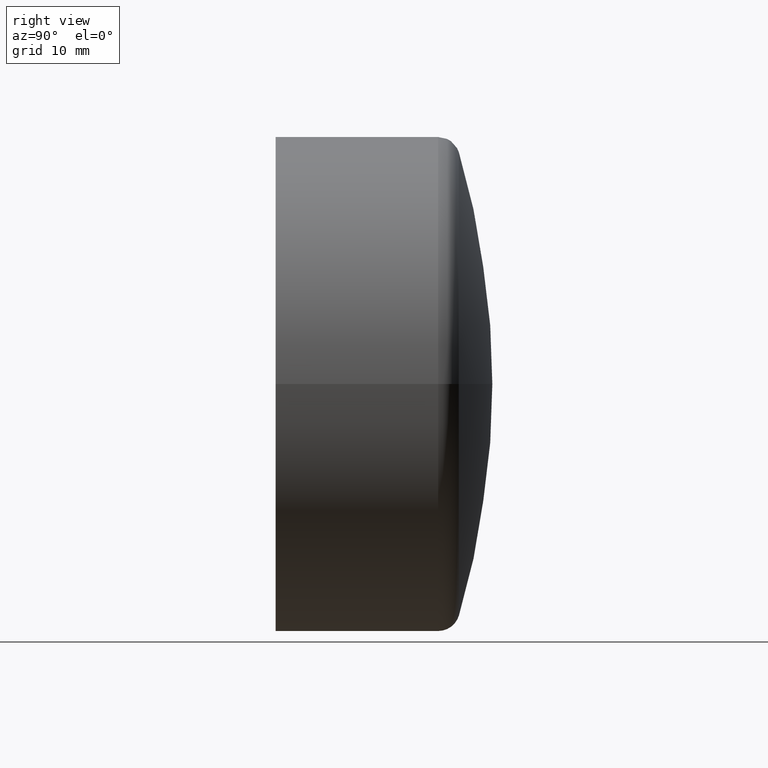
[diagram: clean part render]
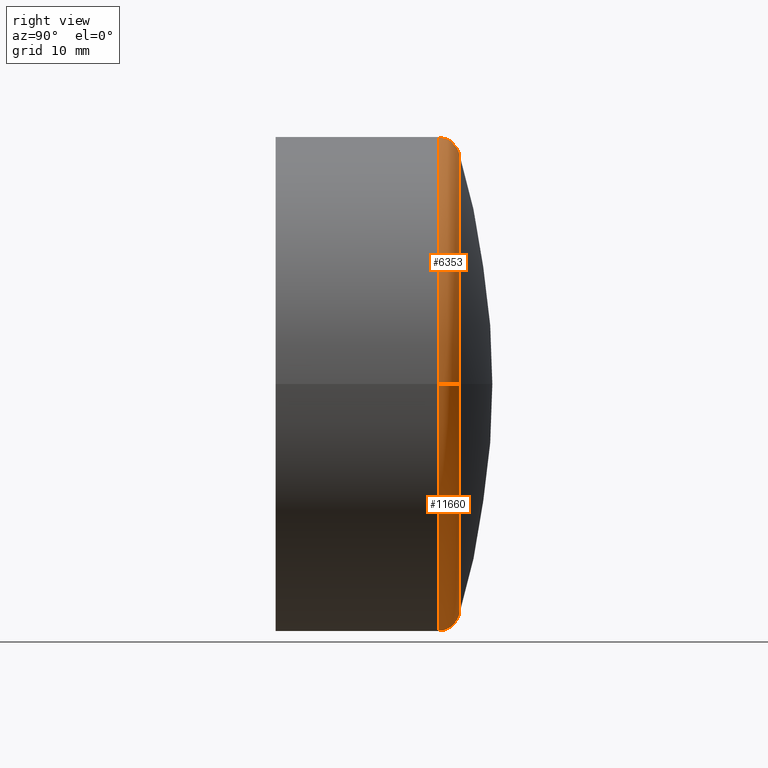
[diagram: same view with one multi-face feature highlighted, each face labeled with its STEP entity id]
A machine part, right view. The highlighted faces form ONE feature: a constant-radius fillet chain: 2 tangent blend faces with common blend radius 2 mm. The faces share edges in the B-rep.
Their STEP definitions:
[1] entity #11660 (Torus):
#77 = CARTESIAN_POINT ( 'NONE',  ( -20.79999999999999400, 15.00000000000000700, 0.0000000000000000000 ) ) ;
#130 = DIRECTION ( 'NONE',  ( -0.0000000000000000000, 0.0000000000000000000, -1.000000000000000000 ) ) ;
#943 = CIRCLE ( 'NONE', #6519, 2.000000000000001800 ) ;
#1603 = DIRECTION ( 'NONE',  ( -1.000000000000000000, 1.540862187183947000E-016, 0.0000000000000000000 ) ) ;
#1705 = CARTESIAN_POINT ( 'NONE',  ( 2.606905479389546700E-015, 16.91848564441627500, 0.0000000000000000000 ) ) ;
#1998 = ORIENTED_EDGE ( 'NONE', *, *, #10678, .F. ) ;
#2249 = ORIENTED_EDGE ( 'NONE', *, *, #7795, .T. ) ;
#2760 = VERTEX_POINT ( 'NONE', #3010 ) ;
#2957 = AXIS2_PLACEMENT_3D ( 'NONE', #10795, #11775, #9833 ) ;
#3001 = DIRECTION ( 'NONE',  ( -1.000000000000000000, 0.0000000000000000000, 0.0000000000000000000 ) ) ;
#3010 = CARTESIAN_POINT ( 'NONE',  ( -21.36516619871386900, 16.91848564441628300, -2.616478239850618300E-015 ) ) ;
#3334 = CARTESIAN_POINT ( 'NONE',  ( 21.36516619871388700, 16.91848564441627500, 0.0000000000000000000 ) ) ;
#3577 = CARTESIAN_POINT ( 'NONE',  ( 2.311293280775920800E-015, 15.00000000000000400, 0.0000000000000000000 ) ) ;
#4475 = AXIS2_PLACEMENT_3D ( 'NONE', #10097, #6377, #1603 ) ;
#4574 = DIRECTION ( 'NONE',  ( -1.000000000000000000, 1.521687259628778000E-016, 0.0000000000000000000 ) ) ;
#5229 = FACE_OUTER_BOUND ( 'NONE', #12027, .T. ) ;
#5325 = VERTEX_POINT ( 'NONE', #10196 ) ;
#6294 = TOROIDAL_SURFACE ( 'NONE', #4475, 20.79999999999999700, 2.000000000000003600 ) ;
#6377 = DIRECTION ( 'NONE',  ( 1.540862187183947000E-016, 1.000000000000000000, -0.0000000000000000000 ) ) ;
#6519 = AXIS2_PLACEMENT_3D ( 'NONE', #77, #130, #3001 ) ;
#7108 = CIRCLE ( 'NONE', #7680, 21.36516619871387900 ) ;
#7653 = DIRECTION ( 'NONE',  ( -1.000000000000000000, 1.623880160671282100E-016, 0.0000000000000000000 ) ) ;
#7680 = AXIS2_PLACEMENT_3D ( 'NONE', #1705, #8527, #7653 ) ;
#7686 = EDGE_CURVE ( 'NONE', #7868, #9748, #11317, .T. ) ;
#7795 = EDGE_CURVE ( 'NONE', #5325, #2760, #943, .T. ) ;
#7868 = VERTEX_POINT ( 'NONE', #11264 ) ;
#8510 = EDGE_CURVE ( 'NONE', #7868, #5325, #11465, .T. ) ;
#8527 = DIRECTION ( 'NONE',  ( 1.540862187183947000E-016, 1.000000000000000000, -0.0000000000000000000 ) ) ;
#8779 = ORIENTED_EDGE ( 'NONE', *, *, #8510, .T. ) ;
#9301 = ORIENTED_EDGE ( 'NONE', *, *, #7686, .F. ) ;
#9748 = VERTEX_POINT ( 'NONE', #3334 ) ;
#9833 = DIRECTION ( 'NONE',  ( 1.000000000000000000, 0.0000000000000000000, 1.224646799147353500E-016 ) ) ;
#10097 = CARTESIAN_POINT ( 'NONE',  ( 3.469446951953614200E-015, 15.00000000000000400, 0.0000000000000000000 ) ) ;
#10196 = CARTESIAN_POINT ( 'NONE',  ( -22.79999999999999400, 15.00000000000000700, 0.0000000000000000000 ) ) ;
#10678 = EDGE_CURVE ( 'NONE', #9748, #2760, #7108, .T. ) ;
#10795 = CARTESIAN_POINT ( 'NONE',  ( 20.80000000000000100, 15.00000000000000000, 2.547265342226494200E-015 ) ) ;
#11264 = CARTESIAN_POINT ( 'NONE',  ( 22.80000000000000100, 15.00000000000000000, 2.792194702055964800E-015 ) ) ;
#11317 = CIRCLE ( 'NONE', #2957, 2.000000000000001800 ) ;
#11413 = AXIS2_PLACEMENT_3D ( 'NONE', #3577, #12291, #4574 ) ;
#11465 = CIRCLE ( 'NONE', #11413, 22.80000000000000100 ) ;
#11660 = ADVANCED_FACE ( 'NONE', ( #5229 ), #6294, .T. ) ;
#11775 = DIRECTION ( 'NONE',  ( -1.224646799147353200E-016, 1.887011945462010500E-032, 1.000000000000000000 ) ) ;
#12027 = EDGE_LOOP ( 'NONE', ( #9301, #8779, #2249, #1998 ) ) ;
#12291 = DIRECTION ( 'NONE',  ( 1.540862187183947000E-016, 1.000000000000000000, -0.0000000000000000000 ) ) ;
[2] entity #6353 (Torus):
#43 = ORIENTED_EDGE ( 'NONE', *, *, #7795, .F. ) ;
#77 = CARTESIAN_POINT ( 'NONE',  ( -20.79999999999999400, 15.00000000000000700, 0.0000000000000000000 ) ) ;
#130 = DIRECTION ( 'NONE',  ( -0.0000000000000000000, 0.0000000000000000000, -1.000000000000000000 ) ) ;
#575 = AXIS2_PLACEMENT_3D ( 'NONE', #9806, #6864, #3905 ) ;
#943 = CIRCLE ( 'NONE', #6519, 2.000000000000001800 ) ;
#1500 = CIRCLE ( 'NONE', #575, 22.80000000000000100 ) ;
#1534 = AXIS2_PLACEMENT_3D ( 'NONE', #7648, #10674, #3802 ) ;
#2760 = VERTEX_POINT ( 'NONE', #3010 ) ;
#2957 = AXIS2_PLACEMENT_3D ( 'NONE', #10795, #11775, #9833 ) ;
#3001 = DIRECTION ( 'NONE',  ( -1.000000000000000000, 0.0000000000000000000, 0.0000000000000000000 ) ) ;
#3010 = CARTESIAN_POINT ( 'NONE',  ( -21.36516619871386900, 16.91848564441628300, -2.616478239850618300E-015 ) ) ;
#3334 = CARTESIAN_POINT ( 'NONE',  ( 21.36516619871388700, 16.91848564441627500, 0.0000000000000000000 ) ) ;
#3597 = AXIS2_PLACEMENT_3D ( 'NONE', #9812, #4879, #4845 ) ;
#3659 = ORIENTED_EDGE ( 'NONE', *, *, #7686, .T. ) ;
#3802 = DIRECTION ( 'NONE',  ( -1.000000000000000000, 1.623880160671282100E-016, 0.0000000000000000000 ) ) ;
#3905 = DIRECTION ( 'NONE',  ( -1.000000000000000000, 1.521687259628778000E-016, 0.0000000000000000000 ) ) ;
#4130 = TOROIDAL_SURFACE ( 'NONE', #3597, 20.79999999999999700, 2.000000000000003600 ) ;
#4429 = CIRCLE ( 'NONE', #1534, 21.36516619871387900 ) ;
#4845 = DIRECTION ( 'NONE',  ( -1.000000000000000000, 1.540862187183947000E-016, 0.0000000000000000000 ) ) ;
#4879 = DIRECTION ( 'NONE',  ( 1.540862187183947000E-016, 1.000000000000000000, -0.0000000000000000000 ) ) ;
#4958 = EDGE_CURVE ( 'NONE', #2760, #9748, #4429, .T. ) ;
#5325 = VERTEX_POINT ( 'NONE', #10196 ) ;
#6353 = ADVANCED_FACE ( 'NONE', ( #7507 ), #4130, .T. ) ;
#6519 = AXIS2_PLACEMENT_3D ( 'NONE', #77, #130, #3001 ) ;
#6864 = DIRECTION ( 'NONE',  ( 1.540862187183947000E-016, 1.000000000000000000, -0.0000000000000000000 ) ) ;
#7507 = FACE_OUTER_BOUND ( 'NONE', #8340, .T. ) ;
#7648 = CARTESIAN_POINT ( 'NONE',  ( 2.606905479389546700E-015, 16.91848564441627500, 0.0000000000000000000 ) ) ;
#7686 = EDGE_CURVE ( 'NONE', #7868, #9748, #11317, .T. ) ;
#7795 = EDGE_CURVE ( 'NONE', #5325, #2760, #943, .T. ) ;
#7868 = VERTEX_POINT ( 'NONE', #11264 ) ;
#8340 = EDGE_LOOP ( 'NONE', ( #10487, #3659, #10181, #43 ) ) ;
#9748 = VERTEX_POINT ( 'NONE', #3334 ) ;
#9806 = CARTESIAN_POINT ( 'NONE',  ( 2.311293280775920800E-015, 15.00000000000000400, 0.0000000000000000000 ) ) ;
#9812 = CARTESIAN_POINT ( 'NONE',  ( 3.469446951953614200E-015, 15.00000000000000400, 0.0000000000000000000 ) ) ;
#9833 = DIRECTION ( 'NONE',  ( 1.000000000000000000, 0.0000000000000000000, 1.224646799147353500E-016 ) ) ;
#10181 = ORIENTED_EDGE ( 'NONE', *, *, #4958, .F. ) ;
#10196 = CARTESIAN_POINT ( 'NONE',  ( -22.79999999999999400, 15.00000000000000700, 0.0000000000000000000 ) ) ;
#10487 = ORIENTED_EDGE ( 'NONE', *, *, #12835, .T. ) ;
#10674 = DIRECTION ( 'NONE',  ( 1.540862187183947000E-016, 1.000000000000000000, -0.0000000000000000000 ) ) ;
#10795 = CARTESIAN_POINT ( 'NONE',  ( 20.80000000000000100, 15.00000000000000000, 2.547265342226494200E-015 ) ) ;
#11264 = CARTESIAN_POINT ( 'NONE',  ( 22.80000000000000100, 15.00000000000000000, 2.792194702055964800E-015 ) ) ;
#11317 = CIRCLE ( 'NONE', #2957, 2.000000000000001800 ) ;
#11775 = DIRECTION ( 'NONE',  ( -1.224646799147353200E-016, 1.887011945462010500E-032, 1.000000000000000000 ) ) ;
#12835 = EDGE_CURVE ( 'NONE', #5325, #7868, #1500, .T. ) ;